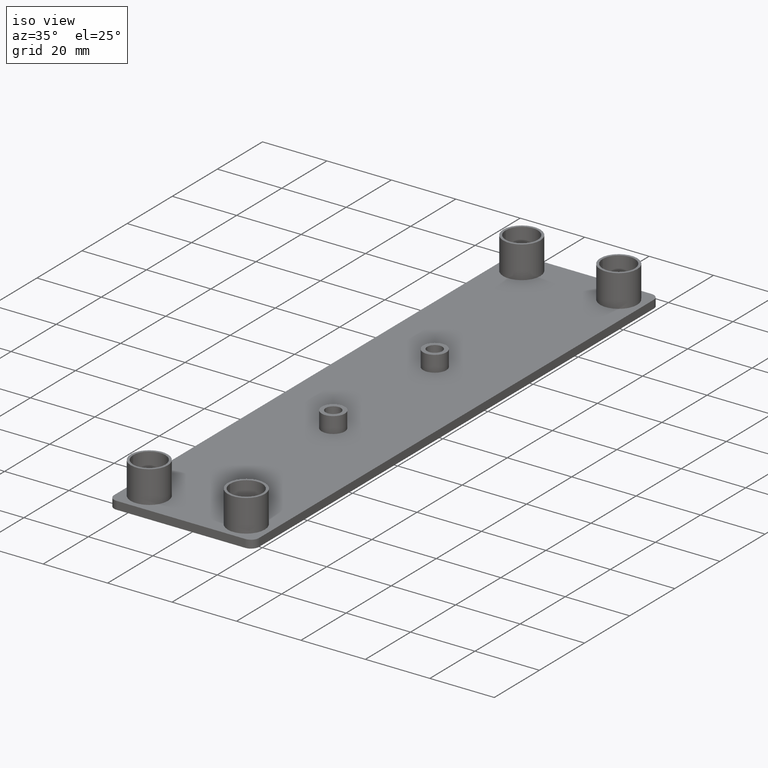
[diagram: clean part render]
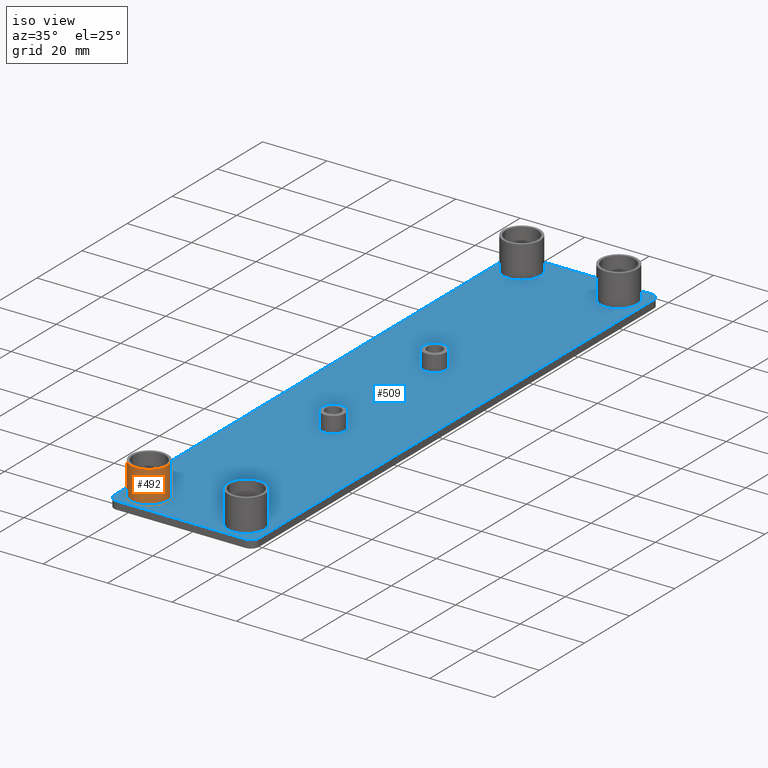
[diagram: same view with the hole feature highlighted: cylindrical wall and planar end face, labeled with their STEP entity ids]
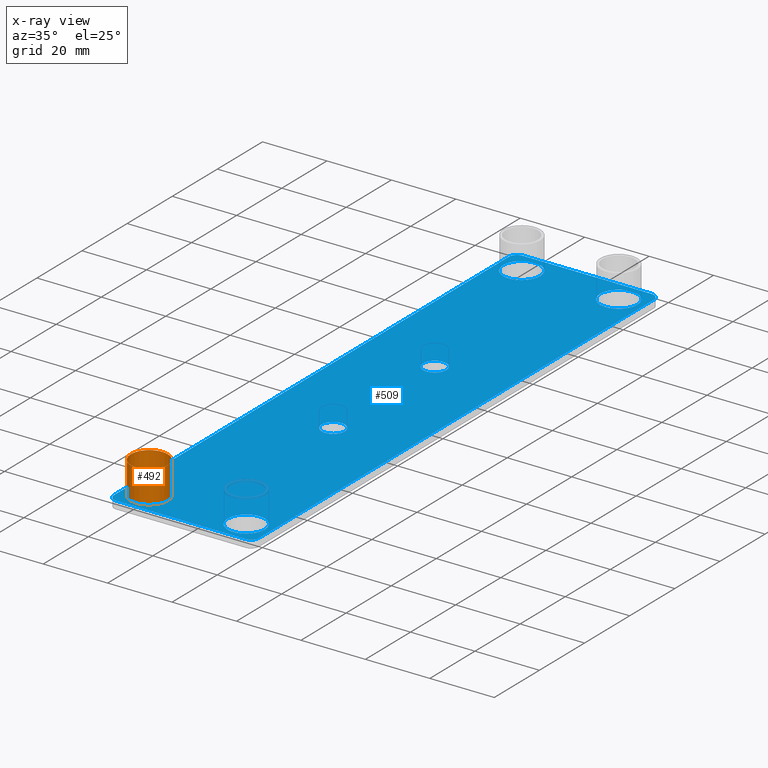
[diagram: x-ray of the same camera — body ghosted, the hole faces saturated]
A machine part, iso view. The highlighted faces form one hole feature of diameter 11.5 mm: the cylindrical wall (entity #492, orange) and its adjacent planar end face (entity #509, blue) — they share a circular edge in the B-rep.
The next image is the same camera in x-ray (body ghosted, the hole faces saturated) — the bore reads through the body.
Wall:
#28=LINE('',#802,#56);
#56=VECTOR('',#650,5.749999999977);
#84=CYLINDRICAL_SURFACE('',#558,5.749999999977);
#107=FACE_OUTER_BOUND('',#142,.T.);
#142=EDGE_LOOP('',(#326,#327,#328,#329));
#187=CIRCLE('',#559,5.749999999977);
#188=CIRCLE('',#560,5.749999999977);
#219=VERTEX_POINT('',#799);
#220=VERTEX_POINT('',#801);
#261=EDGE_CURVE('',#219,#219,#187,.T.);
#262=EDGE_CURVE('',#219,#220,#28,.T.);
#263=EDGE_CURVE('',#220,#220,#188,.T.);
#326=ORIENTED_EDGE('',*,*,#261,.F.);
#327=ORIENTED_EDGE('',*,*,#262,.T.);
#328=ORIENTED_EDGE('',*,*,#263,.T.);
#329=ORIENTED_EDGE('',*,*,#262,.F.);
#492=ADVANCED_FACE('',(#107),#84,.T.);
#558=AXIS2_PLACEMENT_3D('',#798,#646,#647);
#559=AXIS2_PLACEMENT_3D('',#800,#648,#649);
#560=AXIS2_PLACEMENT_3D('',#803,#651,#652);
#646=DIRECTION('center_axis',(0.,0.,1.));
#647=DIRECTION('ref_axis',(1.,0.,0.));
#648=DIRECTION('center_axis',(0.,0.,1.));
#649=DIRECTION('ref_axis',(1.,0.,0.));
#650=DIRECTION('',(0.,0.,-1.));
#651=DIRECTION('center_axis',(0.,0.,1.));
#652=DIRECTION('ref_axis',(1.,0.,0.));
#798=CARTESIAN_POINT('Origin',(-15.0500189999361,-60.0500449997599,0.));
#799=CARTESIAN_POINT('',(-20.8000189999131,-60.0500449997599,10.));
#800=CARTESIAN_POINT('Origin',(-15.0500189999361,-60.0500449997599,10.));
#801=CARTESIAN_POINT('',(-20.8000189999131,-60.0500449997599,0.));
#802=CARTESIAN_POINT('',(-20.8000189999131,-60.0500449997599,0.));
#803=CARTESIAN_POINT('Origin',(-15.0500189999361,-60.0500449997599,0.));
End face:
#20=FACE_BOUND('',#165,.T.);
#21=FACE_BOUND('',#166,.T.);
#22=FACE_BOUND('',#167,.T.);
#23=FACE_BOUND('',#168,.T.);
#24=FACE_BOUND('',#169,.T.);
#25=FACE_BOUND('',#170,.T.);
#44=LINE('',#879,#72);
#45=LINE('',#882,#73);
#46=LINE('',#884,#74);
#47=LINE('',#888,#75);
#72=VECTOR('',#738,39.9999539998198);
#73=VECTOR('',#741,175.00000099928);
#74=VECTOR('',#742,39.9999539998198);
#75=VECTOR('',#745,175.00000099928);
#124=FACE_OUTER_BOUND('',#164,.T.);
#164=EDGE_LOOP('',(#388,#389,#390,#391,#392,#393,#394,#395));
#165=EDGE_LOOP('',(#396));
#166=EDGE_LOOP('',(#397));
#167=EDGE_LOOP('',(#398));
#168=EDGE_LOOP('',(#399));
#169=EDGE_LOOP('',(#400));
#170=EDGE_LOOP('',(#401));
#185=CIRCLE('',#554,5.749999999977);
#188=CIRCLE('',#560,5.749999999977);
#191=CIRCLE('',#566,3.5999999999856);
#194=CIRCLE('',#572,3.5999999999856);
#197=CIRCLE('',#578,5.749999999977);
#200=CIRCLE('',#584,5.749999999977);
#206=CIRCLE('',#594,2.5);
#207=CIRCLE('',#596,2.5);
#208=CIRCLE('',#597,2.5);
#209=CIRCLE('',#598,2.5);
#217=VERTEX_POINT('',#790);
#220=VERTEX_POINT('',#801);
#223=VERTEX_POINT('',#812);
#226=VERTEX_POINT('',#823);
#229=VERTEX_POINT('',#834);
#232=VERTEX_POINT('',#845);
#242=VERTEX_POINT('',#871);
#243=VERTEX_POINT('',#872);
#244=VERTEX_POINT('',#877);
#245=VERTEX_POINT('',#878);
#246=VERTEX_POINT('',#880);
#247=VERTEX_POINT('',#883);
#248=VERTEX_POINT('',#885);
#249=VERTEX_POINT('',#887);
#258=EDGE_CURVE('',#217,#217,#185,.T.);
#263=EDGE_CURVE('',#220,#220,#188,.T.);
#268=EDGE_CURVE('',#223,#223,#191,.T.);
#273=EDGE_CURVE('',#226,#226,#194,.T.);
#278=EDGE_CURVE('',#229,#229,#197,.T.);
#283=EDGE_CURVE('',#232,#232,#200,.T.);
#294=EDGE_CURVE('',#242,#243,#206,.T.);
#297=EDGE_CURVE('',#244,#245,#44,.T.);
#298=EDGE_CURVE('',#246,#245,#207,.T.);
#299=EDGE_CURVE('',#246,#243,#45,.T.);
#300=EDGE_CURVE('',#242,#247,#46,.T.);
#301=EDGE_CURVE('',#248,#247,#208,.T.);
#302=EDGE_CURVE('',#248,#249,#47,.T.);
#303=EDGE_CURVE('',#244,#249,#209,.T.);
#388=ORIENTED_EDGE('',*,*,#297,.T.);
#389=ORIENTED_EDGE('',*,*,#298,.F.);
#390=ORIENTED_EDGE('',*,*,#299,.T.);
#391=ORIENTED_EDGE('',*,*,#294,.F.);
#392=ORIENTED_EDGE('',*,*,#300,.T.);
#393=ORIENTED_EDGE('',*,*,#301,.F.);
#394=ORIENTED_EDGE('',*,*,#302,.T.);
#395=ORIENTED_EDGE('',*,*,#303,.F.);
#396=ORIENTED_EDGE('',*,*,#258,.F.);
#397=ORIENTED_EDGE('',*,*,#263,.F.);
#398=ORIENTED_EDGE('',*,*,#268,.F.);
#399=ORIENTED_EDGE('',*,*,#273,.F.);
#400=ORIENTED_EDGE('',*,*,#278,.F.);
#401=ORIENTED_EDGE('',*,*,#283,.F.);
#443=PLANE('',#595);
#509=ADVANCED_FACE('',(#124,#20,#21,#22,#23,#24,#25),#443,.T.);
#554=AXIS2_PLACEMENT_3D('',#792,#637,#638);
#560=AXIS2_PLACEMENT_3D('',#803,#651,#652);
#566=AXIS2_PLACEMENT_3D('',#814,#665,#666);
#572=AXIS2_PLACEMENT_3D('',#825,#679,#680);
#578=AXIS2_PLACEMENT_3D('',#836,#693,#694);
#584=AXIS2_PLACEMENT_3D('',#847,#707,#708);
#594=AXIS2_PLACEMENT_3D('',#873,#732,#733);
#595=AXIS2_PLACEMENT_3D('',#876,#736,#737);
#596=AXIS2_PLACEMENT_3D('',#881,#739,#740);
#597=AXIS2_PLACEMENT_3D('',#886,#743,#744);
#598=AXIS2_PLACEMENT_3D('',#889,#746,#747);
#637=DIRECTION('center_axis',(0.,0.,1.));
#638=DIRECTION('ref_axis',(1.,0.,0.));
#651=DIRECTION('center_axis',(0.,0.,1.));
#652=DIRECTION('ref_axis',(1.,0.,0.));
#665=DIRECTION('center_axis',(0.,0.,1.));
#666=DIRECTION('ref_axis',(1.,0.,0.));
#679=DIRECTION('center_axis',(0.,0.,1.));
#680=DIRECTION('ref_axis',(1.,0.,0.));
#693=DIRECTION('center_axis',(0.,0.,1.));
#694=DIRECTION('ref_axis',(1.,0.,0.));
#707=DIRECTION('center_axis',(0.,0.,1.));
#708=DIRECTION('ref_axis',(1.,0.,0.));
#732=DIRECTION('center_axis',(0.,0.,-1.));
#733=DIRECTION('ref_axis',(0.,-1.,0.));
#736=DIRECTION('center_axis',(0.,0.,1.));
#737=DIRECTION('ref_axis',(1.,0.,0.));
#738=DIRECTION('',(-1.,0.,0.));
#739=DIRECTION('center_axis',(0.,0.,-1.));
#740=DIRECTION('ref_axis',(-1.,0.,0.));
#741=DIRECTION('',(0.,-1.,0.));
#742=DIRECTION('',(1.,0.,0.));
#743=DIRECTION('center_axis',(0.,0.,-1.));
#744=DIRECTION('ref_axis',(1.,0.,0.));
#745=DIRECTION('',(0.,1.,0.));
#746=DIRECTION('center_axis',(0.,0.,-1.));
#747=DIRECTION('ref_axis',(0.,1.,0.));
#790=CARTESIAN_POINT('',(9.29998099996673,-60.0500449997599,0.));
#792=CARTESIAN_POINT('Origin',(15.0499809999437,-60.0500449997599,0.));
#801=CARTESIAN_POINT('',(-20.8000189999131,-60.0500449997599,0.));
#803=CARTESIAN_POINT('Origin',(-15.0500189999361,-60.0500449997599,0.));
#812=CARTESIAN_POINT('',(-3.5999999999856,0.,0.));
#814=CARTESIAN_POINT('Origin',(0.,0.,0.));
#823=CARTESIAN_POINT('',(-3.5999999999856,44.9999999998199,0.));
#825=CARTESIAN_POINT('Origin',(0.,44.9999999998199,0.));
#834=CARTESIAN_POINT('',(-20.8000219999169,105.05004499958,0.));
#836=CARTESIAN_POINT('Origin',(-15.0500219999399,105.05004499958,0.));
#845=CARTESIAN_POINT('',(9.29997799996253,105.04999999958,0.));
#847=CARTESIAN_POINT('Origin',(15.0499779999395,105.04999999958,0.));
#871=CARTESIAN_POINT('',(-19.9999739999062,-67.5000009997302,0.));
#872=CARTESIAN_POINT('',(-22.4999739999062,-65.0000009997302,0.));
#873=CARTESIAN_POINT('Origin',(-19.9999739999062,-65.0000009997302,0.));
#876=CARTESIAN_POINT('Origin',(-27.0000096836652,-85.500041855611,0.));
#877=CARTESIAN_POINT('',(19.9999799999136,112.49999999955,0.));
#878=CARTESIAN_POINT('',(-19.9999739999062,112.49999999955,0.));
#879=CARTESIAN_POINT('',(19.9999799999136,112.49999999955,0.));
#880=CARTESIAN_POINT('',(-22.4999739999062,109.99999999955,0.));
#881=CARTESIAN_POINT('Origin',(-19.9999739999062,109.99999999955,0.));
#882=CARTESIAN_POINT('',(-22.4999739999062,109.99999999955,0.));
#883=CARTESIAN_POINT('',(19.9999799999136,-67.5000009997302,0.));
#884=CARTESIAN_POINT('',(-19.9999739999062,-67.5000009997302,0.));
#885=CARTESIAN_POINT('',(22.4999799999136,-65.0000009997302,0.));
#886=CARTESIAN_POINT('Origin',(19.9999799999136,-65.0000009997302,0.));
#887=CARTESIAN_POINT('',(22.4999799999136,109.99999999955,0.));
#888=CARTESIAN_POINT('',(22.4999799999136,-65.0000009997302,0.));
#889=CARTESIAN_POINT('Origin',(19.9999799999136,109.99999999955,0.));